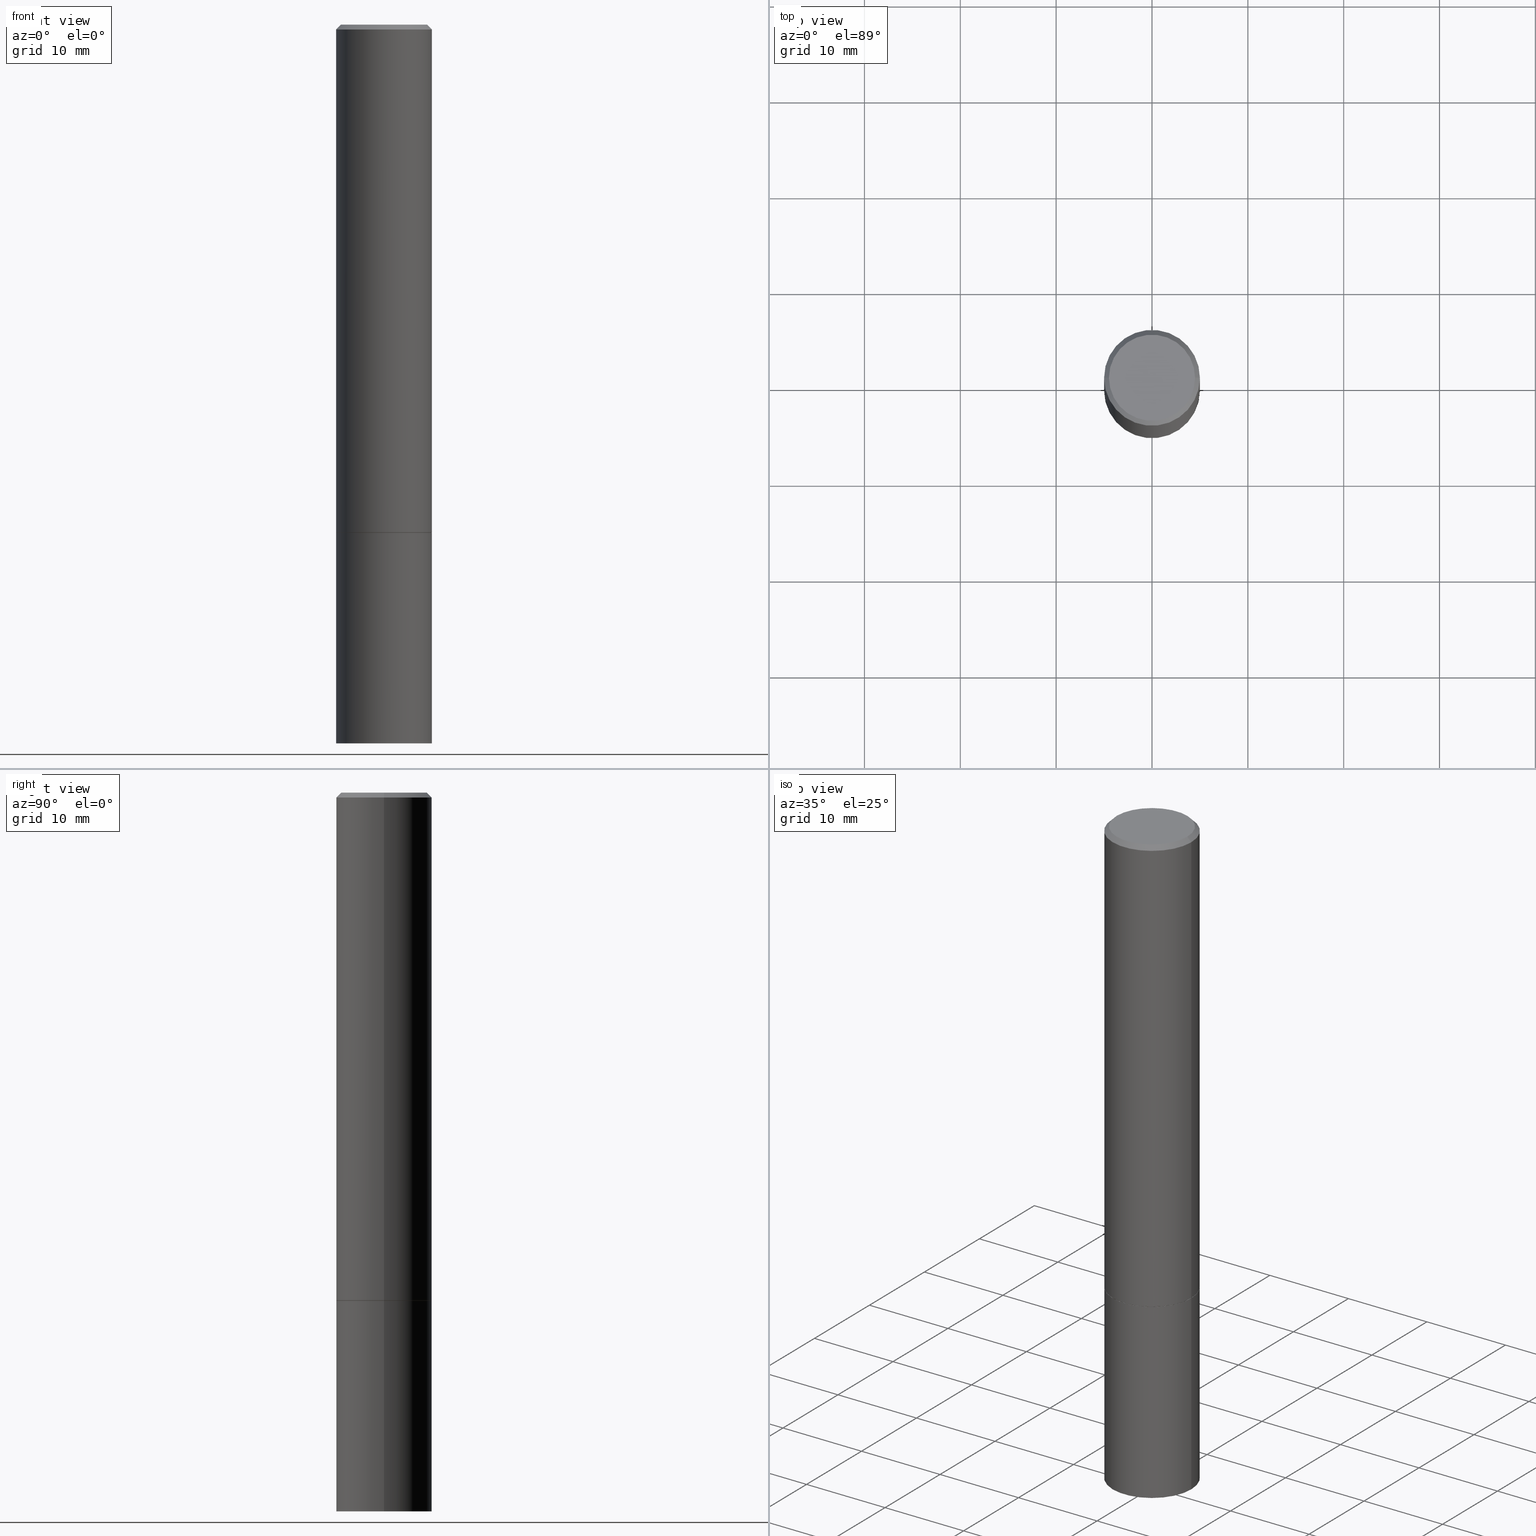
[diagram: canonical four-view strip — front | top / right | iso, engineering-drawing reading convention]
A machine part, canonical four-view strip (front | top / right | iso — engineering-drawing reading convention). The complete STEP part file that produces these views, byte-faithful:
ISO-10303-21;
HEADER;
FILE_DESCRIPTION (( 'STEP AP203' ),
    '1' );
FILE_NAME ('48791.STEP',
    '2024-02-28T14:51:59',
    ( '' ),
    ( '' ),
    'SwSTEP 2.0',
    'SolidWorks 2023',
    '' );
FILE_SCHEMA (( 'CONFIG_CONTROL_DESIGN' ));
ENDSEC;

DATA;
#1 = ADVANCED_FACE ( 'NONE', ( #358 ), #300, .T. ) ;
#2 = DIRECTION ( 'NONE',  ( -2.445468806185136597E-29, 3.491481338843145583E-15, 1.000000000000000000 ) ) ;
#3 = CIRCLE ( 'NONE', #124, 0.1968500000000000250 ) ;
#4 = ORIENTED_EDGE ( 'NONE', *, *, #112, .F. ) ;
#5 = CARTESIAN_POINT ( 'NONE',  ( 5.100514289060338336E-29, -7.282182628425147921E-15, -2.085699999999999665 ) ) ;
#6 = EDGE_LOOP ( 'NONE', ( #271, #183, #158, #121 ) ) ;
#7 = DIRECTION ( 'NONE',  ( 1.000000000000000000, -6.982962677686267499E-15, 0.000000000000000000 ) ) ;
#8 = ORIENTED_EDGE ( 'NONE', *, *, #123, .T. ) ;
#9 = APPROVAL ( #84, 'UNSPECIFIED' ) ;
#10 = DIRECTION ( 'NONE',  ( 2.445468806185136597E-29, -3.491481338843145583E-15, -1.000000000000000000 ) ) ;
#11 = ORIENTED_EDGE ( 'NONE', *, *, #332, .F. ) ;
#12 = DIRECTION ( 'NONE',  ( 1.000000000000000000, 0.000000000000000000, 0.000000000000000000 ) ) ;
#13 = ORIENTED_EDGE ( 'NONE', *, *, #112, .T. ) ;
#14 = CC_DESIGN_PERSON_AND_ORGANIZATION_ASSIGNMENT ( #331, #177, ( #280 ) ) ;
#15 = CARTESIAN_POINT ( 'NONE',  ( 5.102959757866523939E-29, -7.285674109763990928E-15, -2.086699999999999999 ) ) ;
#16 = EDGE_CURVE ( 'NONE', #74, #63, #141, .T. ) ;
#17 = DIRECTION ( 'NONE',  ( -2.445468806185136597E-29, 3.491481338843145583E-15, 1.000000000000000000 ) ) ;
#18 = CARTESIAN_POINT ( 'NONE',  ( 0.1958499999999999963, -8.653287350188846522E-15, -2.086699999999999999 ) ) ;
#19 = DIRECTION ( 'NONE',  ( 1.000000000000000000, -6.982962677686267499E-15, 0.000000000000000000 ) ) ;
#20 = FACE_OUTER_BOUND ( 'NONE', #6, .T. ) ;
#21 = PERSON_AND_ORGANIZATION ( #135, #83 ) ;
#22 = AXIS2_PLACEMENT_3D ( 'NONE', #319, #10, #106 ) ;
#23 = COORDINATED_UNIVERSAL_TIME_OFFSET ( 5, 0, .BEHIND. ) ;
#24 = PERSON_AND_ORGANIZATION ( #135, #83 ) ;
#25 = DIRECTION ( 'NONE',  ( 2.438088387897960049E-29, -3.491481338843145188E-15, -1.000000000000000000 ) ) ;
#26 = PERSON_AND_ORGANIZATION_ROLE ( 'design_supplier' ) ;
#27 = APPROVAL ( #189, 'UNSPECIFIED' ) ;
#28 = CIRCLE ( 'NONE', #277, 0.1968499999999997752 ) ;
#29 = DIRECTION ( 'NONE',  ( -2.445468806185136877E-29, 3.491481338843145188E-15, 1.000000000000000000 ) ) ;
#30 = CC_DESIGN_APPROVAL ( #27, ( #280 ) ) ;
#31 = CALENDAR_DATE ( 2024, 28, 2 ) ;
#32 = ADVANCED_FACE ( 'NONE', ( #198 ), #107, .T. ) ;
#33 = CARTESIAN_POINT ( 'NONE',  ( 1.374596203102613789E-15, 0.1968499999999896999, -2.952800000000000313 ) ) ;
#34 = ADVANCED_FACE ( 'NONE', ( #51 ), #155, .T. ) ;
#35 = VECTOR ( 'NONE', #89, 39.37007874015748143 ) ;
#36 = DIRECTION ( 'NONE',  ( 2.438088387897960049E-29, -3.491481338843145188E-15, -1.000000000000000000 ) ) ;
#37 = VERTEX_POINT ( 'NONE', #170 ) ;
#38 = DIRECTION ( 'NONE',  ( -2.445468806185136597E-29, 3.491481338843145583E-15, 1.000000000000000000 ) ) ;
#39 = ORIENTED_EDGE ( 'NONE', *, *, #341, .F. ) ;
#40 = VECTOR ( 'NONE', #48, 39.37007874015748143 ) ;
#41 = CIRCLE ( 'NONE', #364, 0.1958499999999999963 ) ;
#42 = CARTESIAN_POINT ( 'NONE',  ( 0.1958499999999999963, -8.653287350188846522E-15, -2.086699999999999999 ) ) ;
#43 = CARTESIAN_POINT ( 'NONE',  ( -0.1968499999999997752, 1.304766576325677127E-15, -0.02000000000000001776 ) ) ;
#44 = CARTESIAN_POINT ( 'NONE',  ( 5.102959757866523939E-29, -7.285674109763990928E-15, -2.086699999999999999 ) ) ;
#45 = CARTESIAN_POINT ( 'NONE',  ( 5.100514289060338336E-29, -7.282182628425147921E-15, -2.085699999999999665 ) ) ;
#46 = VECTOR ( 'NONE', #321, 39.37007874015748854 ) ;
#47 = DIRECTION ( 'NONE',  ( 1.000000000000000000, -6.982962677686268288E-15, 0.000000000000000000 ) ) ;
#48 = DIRECTION ( 'NONE',  ( -2.445468806185136877E-29, 3.491481338843145188E-15, 1.000000000000000000 ) ) ;
#49 = ORIENTED_EDGE ( 'NONE', *, *, #315, .F. ) ;
#50 = SECURITY_CLASSIFICATION_LEVEL ( 'unclassified' ) ;
#51 = FACE_OUTER_BOUND ( 'NONE', #318, .T. ) ;
#52 = CYLINDRICAL_SURFACE ( 'NONE', #222, 0.1968499999999999139 ) ;
#53 = CC_DESIGN_PERSON_AND_ORGANIZATION_ASSIGNMENT ( #359, #357, ( #142 ) ) ;
#54 = FACE_OUTER_BOUND ( 'NONE', #242, .T. ) ;
#55 = EDGE_CURVE ( 'NONE', #164, #37, #303, .T. ) ;
#56 = CIRCLE ( 'NONE', #180, 0.1968500000000000250 ) ;
#57 = CARTESIAN_POINT ( 'NONE',  ( 7.220980290903470182E-29, -1.030964609733603853E-14, -2.952799999999999869 ) ) ;
#58 = VECTOR ( 'NONE', #160, 39.37007874015748143 ) ;
#59 = CARTESIAN_POINT ( 'NONE',  ( 0.1768499999999997851, -1.316798864272040563E-15, 4.268512490109333727E-18 ) ) ;
#60 = ORIENTED_EDGE ( 'NONE', *, *, #295, .F. ) ;
#61 = CC_DESIGN_PERSON_AND_ORGANIZATION_ASSIGNMENT ( #365, #26, ( #114 ) ) ;
#62 = DIRECTION ( 'NONE',  ( -2.445468806185136597E-29, 3.491481338843145583E-15, 1.000000000000000000 ) ) ;
#63 = VERTEX_POINT ( 'NONE', #134 ) ;
#64 = ADVANCED_FACE ( 'NONE', ( #20 ), #276, .T. ) ;
#65 =( NAMED_UNIT ( * ) PLANE_ANGLE_UNIT ( ) SI_UNIT ( $, .RADIAN. ) );
#66 = AXIS2_PLACEMENT_3D ( 'NONE', #132, #254, #362 ) ;
#67 = LOCAL_TIME ( 9, 51, 59.00000000000000000, #224 ) ;
#68 = CARTESIAN_POINT ( 'NONE',  ( -0.1958499999999999963, -5.888777707429612535E-15, -2.086699999999999999 ) ) ;
#69 = VERTEX_POINT ( 'NONE', #18 ) ;
#70 = DATE_AND_TIME ( #325, #92 ) ;
#71 = EDGE_CURVE ( 'NONE', #95, #91, #301, .T. ) ;
#72 = ORIENTED_EDGE ( 'NONE', *, *, #55, .T. ) ;
#73 =( NAMED_UNIT ( * ) SI_UNIT ( $, .STERADIAN. ) SOLID_ANGLE_UNIT ( ) );
#74 = VERTEX_POINT ( 'NONE', #252 ) ;
#75 = CIRCLE ( 'NONE', #266, 0.1958499999999999963 ) ;
#76 = LOCAL_TIME ( 9, 51, 59.00000000000000000, #172 ) ;
#77 = DIRECTION ( 'NONE',  ( -2.445468806185136597E-29, 3.491481338843145583E-15, 1.000000000000000000 ) ) ;
#78 = PERSON_AND_ORGANIZATION ( #135, #83 ) ;
#79 = DIMENSIONAL_EXPONENTS ( 1.000000000000000000, 0.000000000000000000, 0.000000000000000000, 0.000000000000000000, 0.000000000000000000, 0.000000000000000000, 0.000000000000000000 ) ;
#80 = ORIENTED_EDGE ( 'NONE', *, *, #218, .F. ) ;
#81 = UNCERTAINTY_MEASURE_WITH_UNIT (LENGTH_MEASURE( 1.000000000000000082E-05 ), #128, 'distance_accuracy_value', 'NONE');
#82 = APPROVAL_STATUS ( 'not_yet_approved' ) ;
#83 = ORGANIZATION ( 'UNSPECIFIED', 'UNSPECIFIED', '' ) ;
#84 = APPROVAL_STATUS ( 'not_yet_approved' ) ;
#85 = LINE ( 'NONE', #203, #35 ) ;
#86 = DATE_AND_TIME ( #330, #238 ) ;
#87 = CARTESIAN_POINT ( 'NONE',  ( 0.1968500000000000250, -1.168424230043858014E-14, -2.952799999999999869 ) ) ;
#88 = CIRCLE ( 'NONE', #226, 0.1968500000000000250 ) ;
#89 = DIRECTION ( 'NONE',  ( -2.445468806185136877E-29, 3.491481338843145188E-15, 1.000000000000000000 ) ) ;
#90 = VECTOR ( 'NONE', #247, 39.37007874015748854 ) ;
#91 = VERTEX_POINT ( 'NONE', #302 ) ;
#92 = LOCAL_TIME ( 9, 51, 59.00000000000000000, #351 ) ;
#93 = DIRECTION ( 'NONE',  ( -1.000000000000000000, 6.982962677686265922E-15, -4.876176775795935793E-29 ) ) ;
#94 = ADVANCED_FACE ( 'NONE', ( #105 ), #361, .T. ) ;
#95 = VERTEX_POINT ( 'NONE', #231 ) ;
#96 = DIRECTION ( 'NONE',  ( -1.000000000000000000, 6.982962677686265922E-15, -4.876176775795935793E-29 ) ) ;
#97 = ORIENTED_EDGE ( 'NONE', *, *, #343, .T. ) ;
#98 = EDGE_LOOP ( 'NONE', ( #162, #217 ) ) ;
#99 = AXIS2_PLACEMENT_3D ( 'NONE', #44, #77, #195 ) ;
#100 = ADVANCED_FACE ( 'NONE', ( #338 ), #117, .F. ) ;
#101 = CARTESIAN_POINT ( 'NONE',  ( 0.000000000000000000, 0.000000000000000000, 0.000000000000000000 ) ) ;
#102 = CC_DESIGN_PERSON_AND_ORGANIZATION_ASSIGNMENT ( #335, #116, ( #114 ) ) ;
#103 = ORIENTED_EDGE ( 'NONE', *, *, #306, .F. ) ;
#104 = DIRECTION ( 'NONE',  ( -0.7071067811865469066, 2.468850131082251144E-15, -0.7071067811865479058 ) ) ;
#105 = FACE_OUTER_BOUND ( 'NONE', #143, .T. ) ;
#106 = DIRECTION ( 'NONE',  ( -1.000000000000000000, 6.982962677686266711E-15, 0.000000000000000000 ) ) ;
#107 = CYLINDRICAL_SURFACE ( 'NONE', #66, 0.1968499999999999139 ) ;
#108 = MANIFOLD_SOLID_BREP ( 'Body-Move/Copy2[2]', #154 ) ;
#109 = AXIS2_PLACEMENT_3D ( 'NONE', #171, #138, #168 ) ;
#110 = PERSON_AND_ORGANIZATION_ROLE ( 'classification_officer' ) ;
#111 = MANIFOLD_SOLID_BREP ( 'Body-Move/Copy2[1]', #286 ) ;
#112 = EDGE_CURVE ( 'NONE', #164, #326, #360, .T. ) ;
#113 = CIRCLE ( 'NONE', #178, 0.1968500000000000250 ) ;
#114 = PRODUCT_DEFINITION_FORMATION_WITH_SPECIFIED_SOURCE ( 'ANY', '', #142, .NOT_KNOWN. ) ;
#115 = DIRECTION ( 'NONE',  ( 1.000000000000000000, -6.982962677686267499E-15, 0.000000000000000000 ) ) ;
#116 = PERSON_AND_ORGANIZATION_ROLE ( 'creator' ) ;
#117 = PLANE ( 'NONE',  #305 ) ;
#118 = CARTESIAN_POINT ( 'NONE',  ( -1.043851414335219820E-46, 1.490343170380447200E-32, 4.268512490100411279E-18 ) ) ;
#119 = PRODUCT_DEFINITION_SHAPE ( 'NONE', 'NONE',  #280 ) ;
#120 = VECTOR ( 'NONE', #220, 39.37007874015748854 ) ;
#121 = ORIENTED_EDGE ( 'NONE', *, *, #196, .F. ) ;
#122 = DIRECTION ( 'NONE',  ( 2.438088387897960049E-29, -3.491481338843145188E-15, -1.000000000000000000 ) ) ;
#123 = EDGE_CURVE ( 'NONE', #37, #63, #28, .T. ) ;
#124 = AXIS2_PLACEMENT_3D ( 'NONE', #184, #260, #7 ) ;
#125 = VERTEX_POINT ( 'NONE', #234 ) ;
#126 = CARTESIAN_POINT ( 'NONE',  ( -1.043851414335219820E-46, 1.490343170380447200E-32, 4.268512490100411279E-18 ) ) ;
#127 = VERTEX_POINT ( 'NONE', #87 ) ;
#128 =( CONVERSION_BASED_UNIT ( 'INCH', #268 ) LENGTH_UNIT ( ) NAMED_UNIT ( #79 ) );
#129 = ORIENTED_EDGE ( 'NONE', *, *, #218, .T. ) ;
#130 = AXIS2_PLACEMENT_3D ( 'NONE', #126, #179, #281 ) ;
#131 = MECHANICAL_CONTEXT ( 'NONE', #193, 'mechanical' ) ;
#132 = CARTESIAN_POINT ( 'NONE',  ( 0.000000000000000000, 0.000000000000000000, 0.000000000000000000 ) ) ;
#133 = CARTESIAN_POINT ( 'NONE',  ( -0.1958499999999999963, -5.894076161777834937E-15, -2.086699999999999999 ) ) ;
#134 = CARTESIAN_POINT ( 'NONE',  ( -0.1968499999999997752, 1.304766576325677127E-15, -0.02000000000000001776 ) ) ;
#135 = PERSON ( 'UNSPECIFIED', 'UNSPECIFIED', 'UNSPECIFIED', ('UNSPECIFIED'), ('UNSPECIFIED'), ('UNSPECIFIED') ) ;
#136 = CARTESIAN_POINT ( 'NONE',  ( 5.102959757866523939E-29, -7.285674109763990928E-15, -2.086699999999999999 ) ) ;
#137 = EDGE_CURVE ( 'NONE', #125, #37, #228, .T. ) ;
#138 = DIRECTION ( 'NONE',  ( -2.445468806185136597E-29, 3.491481338843145583E-15, 1.000000000000000000 ) ) ;
#139 = DATE_AND_TIME ( #31, #149 ) ;
#140 = CC_DESIGN_APPROVAL ( #285, ( #114 ) ) ;
#141 = LINE ( 'NONE', #201, #40 ) ;
#142 = PRODUCT ( '48791', '48791', '', ( #131 ) ) ;
#143 = EDGE_LOOP ( 'NONE', ( #328, #347, #211, #320 ) ) ;
#144 = EDGE_CURVE ( 'NONE', #74, #125, #88, .T. ) ;
#145 = COORDINATED_UNIVERSAL_TIME_OFFSET ( 5, 0, .BEHIND. ) ;
#146 = DIRECTION ( 'NONE',  ( -2.445468806185136597E-29, 3.491481338843145583E-15, 1.000000000000000000 ) ) ;
#147 = AXIS2_PLACEMENT_3D ( 'NONE', #225, #221, #200 ) ;
#148 = AXIS2_PLACEMENT_3D ( 'NONE', #236, #36, #93 ) ;
#149 = LOCAL_TIME ( 9, 51, 59.00000000000000000, #23 ) ;
#150 = PLANE ( 'NONE',  #345 ) ;
#151 = FACE_OUTER_BOUND ( 'NONE', #349, .T. ) ;
#152 = ADVANCED_FACE ( 'NONE', ( #264 ), #237, .T. ) ;
#153 = ADVANCED_BREP_SHAPE_REPRESENTATION ( '48791', ( #111, #108, #245 ), #352 ) ;
#154 = CLOSED_SHELL ( 'NONE', ( #1, #32, #152, #289, #181, #34, #329, #232 ) ) ;
#155 = CONICAL_SURFACE ( 'NONE', #99, 0.1958499999999999963, 0.7853981633974141952 ) ;
#156 = APPROVAL_PERSON_ORGANIZATION ( #24, #9, #253 ) ;
#157 = PRODUCT_RELATED_PRODUCT_CATEGORY ( 'detail', '', ( #142 ) ) ;
#158 = ORIENTED_EDGE ( 'NONE', *, *, #265, .T. ) ;
#159 = ADVANCED_FACE ( 'NONE', ( #151 ), #150, .T. ) ;
#160 = DIRECTION ( 'NONE',  ( -2.445468806185136877E-29, 3.491481338843145188E-15, 1.000000000000000000 ) ) ;
#161 = CARTESIAN_POINT ( 'NONE',  ( 0.1968499999999999139, -1.374596203102541017E-15, 9.598753983154295253E-30 ) ) ;
#162 = ORIENTED_EDGE ( 'NONE', *, *, #71, .T. ) ;
#163 = DIRECTION ( 'NONE',  ( 1.000000000000000000, -6.982962677686266711E-15, 0.000000000000000000 ) ) ;
#164 = VERTEX_POINT ( 'NONE', #59 ) ;
#165 = EDGE_LOOP ( 'NONE', ( #288, #188, #103, #39 ) ) ;
#166 = AXIS2_PLACEMENT_3D ( 'NONE', #45, #191, #19 ) ;
#167 = FACE_OUTER_BOUND ( 'NONE', #294, .T. ) ;
#168 = DIRECTION ( 'NONE',  ( 1.000000000000000000, -6.982962677686265922E-15, 4.876176775795935793E-29 ) ) ;
#169 = APPLICATION_PROTOCOL_DEFINITION ( 'international standard', 'config_control_design', 1994, #193 ) ;
#170 = CARTESIAN_POINT ( 'NONE',  ( 0.1968499999999997752, -1.420318657638187347E-15, -0.02000000000000001776 ) ) ;
#171 = CARTESIAN_POINT ( 'NONE',  ( 0.000000000000000000, 0.000000000000000000, 0.000000000000000000 ) ) ;
#172 = COORDINATED_UNIVERSAL_TIME_OFFSET ( 5, 0, .BEHIND. ) ;
#173 = DIRECTION ( 'NONE',  ( -2.445468806185136597E-29, 3.491481338843145583E-15, 1.000000000000000000 ) ) ;
#174 = CC_DESIGN_DATE_AND_TIME_ASSIGNMENT ( #204, #278, ( #323 ) ) ;
#175 = DIRECTION ( 'NONE',  ( 2.445468806185136597E-29, -3.491481338843145583E-15, -1.000000000000000000 ) ) ;
#176 = DIRECTION ( 'NONE',  ( 1.000000000000000000, -6.982962677686265922E-15, 4.876176775795935793E-29 ) ) ;
#177 = PERSON_AND_ORGANIZATION_ROLE ( 'creator' ) ;
#178 = AXIS2_PLACEMENT_3D ( 'NONE', #366, #342, #336 ) ;
#179 = DIRECTION ( 'NONE',  ( -2.445468806185136597E-29, 3.491481338843145583E-15, 1.000000000000000000 ) ) ;
#180 = AXIS2_PLACEMENT_3D ( 'NONE', #57, #2, #284 ) ;
#181 = ADVANCED_FACE ( 'NONE', ( #54 ), #52, .T. ) ;
#182 = CARTESIAN_POINT ( 'NONE',  ( 0.1968500000000000250, -1.374596203102541608E-15, 9.598753983154300858E-30 ) ) ;
#183 = ORIENTED_EDGE ( 'NONE', *, *, #206, .T. ) ;
#184 = CARTESIAN_POINT ( 'NONE',  ( 5.102959757866523939E-29, -7.285674109763990928E-15, -2.086699999999999999 ) ) ;
#185 = ORIENTED_EDGE ( 'NONE', *, *, #123, .F. ) ;
#186 = CARTESIAN_POINT ( 'NONE',  ( -0.1768499999999997851, 1.269851762937246069E-15, 4.268512490091652920E-18 ) ) ;
#187 = AXIS2_PLACEMENT_3D ( 'NONE', #279, #249, #176 ) ;
#188 = ORIENTED_EDGE ( 'NONE', *, *, #315, .T. ) ;
#189 = APPROVAL_STATUS ( 'not_yet_approved' ) ;
#190 = ORIENTED_EDGE ( 'NONE', *, *, #272, .F. ) ;
#191 = DIRECTION ( 'NONE',  ( -2.445468806185136597E-29, 3.491481338843145583E-15, 1.000000000000000000 ) ) ;
#192 = ORIENTED_EDGE ( 'NONE', *, *, #295, .T. ) ;
#193 = APPLICATION_CONTEXT ( 'configuration controlled 3d designs of mechanical parts and assemblies' ) ;
#194 = DIRECTION ( 'NONE',  ( 0.000000000000000000, 0.000000000000000000, 1.000000000000000000 ) ) ;
#195 = DIRECTION ( 'NONE',  ( 1.000000000000000000, -6.982962677686268288E-15, 0.000000000000000000 ) ) ;
#196 = EDGE_CURVE ( 'NONE', #91, #95, #3, .T. ) ;
#197 = LINE ( 'NONE', #133, #120 ) ;
#198 = FACE_OUTER_BOUND ( 'NONE', #298, .T. ) ;
#199 = DATE_AND_TIME ( #308, #67 ) ;
#200 = DIRECTION ( 'NONE',  ( 1.000000000000000000, -6.982962677686268288E-15, 0.000000000000000000 ) ) ;
#201 = CARTESIAN_POINT ( 'NONE',  ( -0.1968499999999999139, 1.398703375343756604E-15, -9.682923725166778072E-30 ) ) ;
#202 = APPROVAL_DATE_TIME ( #139, #9 ) ;
#203 = CARTESIAN_POINT ( 'NONE',  ( -0.1968500000000000250, 1.398703375343757393E-15, -9.682923725166783677E-30 ) ) ;
#204 = DATE_AND_TIME ( #337, #76 ) ;
#205 = CARTESIAN_POINT ( 'NONE',  ( 4.890937612370276662E-31, -6.982962677686296539E-17, -0.02000000000000001776 ) ) ;
#206 = EDGE_CURVE ( 'NONE', #263, #127, #56, .T. ) ;
#207 = CONICAL_SURFACE ( 'NONE', #22, 0.1968499999999997752, 0.7853981633974476129 ) ;
#208 = APPLICATION_CONTEXT ( 'configuration controlled 3d designs of mechanical parts and assemblies' ) ;
#209 = PLANE ( 'NONE',  #148 ) ;
#210 = VECTOR ( 'NONE', #104, 39.37007874015748854 ) ;
#211 = ORIENTED_EDGE ( 'NONE', *, *, #71, .F. ) ;
#212 = DIRECTION ( 'NONE',  ( -2.445468806185136597E-29, 3.491481338843145583E-15, 1.000000000000000000 ) ) ;
#213 = EDGE_LOOP ( 'NONE', ( #235, #80, #316, #97 ) ) ;
#214 = APPLICATION_PROTOCOL_DEFINITION ( 'international standard', 'config_control_design', 1994, #208 ) ;
#215 = EDGE_LOOP ( 'NONE', ( #129, #13 ) ) ;
#216 = PERSON_AND_ORGANIZATION ( #135, #83 ) ;
#217 = ORIENTED_EDGE ( 'NONE', *, *, #196, .T. ) ;
#218 = EDGE_CURVE ( 'NONE', #326, #164, #256, .T. ) ;
#219 = EDGE_CURVE ( 'NONE', #127, #263, #113, .T. ) ;
#220 = DIRECTION ( 'NONE',  ( -0.7071067811865232589, 7.493145998870265808E-15, 0.7071067811865715536 ) ) ;
#221 = DIRECTION ( 'NONE',  ( -2.445468806185136597E-29, 3.491481338843145583E-15, 1.000000000000000000 ) ) ;
#222 = AXIS2_PLACEMENT_3D ( 'NONE', #259, #38, #255 ) ;
#223 = APPROVAL_DATE_TIME ( #70, #27 ) ;
#224 = COORDINATED_UNIVERSAL_TIME_OFFSET ( 5, 0, .BEHIND. ) ;
#225 = CARTESIAN_POINT ( 'NONE',  ( 5.102959757866523939E-29, -7.285674109763990928E-15, -2.086699999999999999 ) ) ;
#226 = AXIS2_PLACEMENT_3D ( 'NONE', #5, #146, #115 ) ;
#227 = APPROVAL_ROLE ( '' ) ;
#228 = LINE ( 'NONE', #161, #251 ) ;
#229 = DATE_TIME_ROLE ( 'creation_date' ) ;
#230 = EDGE_CURVE ( 'NONE', #263, #91, #85, .T. ) ;
#231 = CARTESIAN_POINT ( 'NONE',  ( 0.1968500000000000250, -8.660270312866532536E-15, -2.086699999999999999 ) ) ;
#232 = ADVANCED_FACE ( 'NONE', ( #317 ), #209, .F. ) ;
#233 = CC_DESIGN_PERSON_AND_ORGANIZATION_ASSIGNMENT ( #78, #110, ( #323 ) ) ;
#234 = CARTESIAN_POINT ( 'NONE',  ( 0.1968500000000000250, -8.656778831527691107E-15, -2.085699999999999665 ) ) ;
#235 = ORIENTED_EDGE ( 'NONE', *, *, #55, .F. ) ;
#236 = CARTESIAN_POINT ( 'NONE',  ( 1.234936949548814617E-15, 0.1768499999999997851, -6.153342185293593634E-16 ) ) ;
#237 = CONICAL_SURFACE ( 'NONE', #274, 0.1968499999999997752, 0.7853981633974476129 ) ;
#238 = LOCAL_TIME ( 9, 51, 59.00000000000000000, #145 ) ;
#239 = ORIENTED_EDGE ( 'NONE', *, *, #144, .T. ) ;
#240 = CC_DESIGN_DATE_AND_TIME_ASSIGNMENT ( #199, #229, ( #280 ) ) ;
#241 = DIRECTION ( 'NONE',  ( 1.000000000000000000, -6.982962677686268288E-15, 0.000000000000000000 ) ) ;
#242 = EDGE_LOOP ( 'NONE', ( #333, #239, #243, #344 ) ) ;
#243 = ORIENTED_EDGE ( 'NONE', *, *, #137, .T. ) ;
#244 = APPROVAL_ROLE ( '' ) ;
#245 = AXIS2_PLACEMENT_3D ( 'NONE', #101, #194, #12 ) ;
#246 = ORIENTED_EDGE ( 'NONE', *, *, #144, .F. ) ;
#247 = DIRECTION ( 'NONE',  ( 0.7071067811865469066, -7.319954787623252890E-15, -0.7071067811865479058 ) ) ;
#248 = CARTESIAN_POINT ( 'NONE',  ( 4.890937612370276662E-31, -6.982962677686296539E-17, -0.02000000000000001776 ) ) ;
#249 = DIRECTION ( 'NONE',  ( -2.445468806185136597E-29, 3.491481338843145583E-15, 1.000000000000000000 ) ) ;
#250 = DIRECTION ( 'NONE',  ( -2.445468806185136597E-29, 3.491481338843145583E-15, 1.000000000000000000 ) ) ;
#251 = VECTOR ( 'NONE', #29, 39.37007874015748143 ) ;
#252 = CARTESIAN_POINT ( 'NONE',  ( -0.1968500000000000250, -2.277302752257247033E-15, -2.085699999999999665 ) ) ;
#253 = APPROVAL_ROLE ( '' ) ;
#254 = DIRECTION ( 'NONE',  ( -2.445468806185136597E-29, 3.491481338843145583E-15, 1.000000000000000000 ) ) ;
#255 = DIRECTION ( 'NONE',  ( 1.000000000000000000, -6.982962677686266711E-15, 4.876176775795935793E-29 ) ) ;
#256 = CIRCLE ( 'NONE', #130, 0.1768499999999997851 ) ;
#257 = DESIGN_CONTEXT ( 'detailed design', #208, 'design' ) ;
#258 = CC_DESIGN_SECURITY_CLASSIFICATION ( #323, ( #114 ) ) ;
#259 = CARTESIAN_POINT ( 'NONE',  ( 0.000000000000000000, 0.000000000000000000, 0.000000000000000000 ) ) ;
#260 = DIRECTION ( 'NONE',  ( -2.445468806185136597E-29, 3.491481338843145583E-15, 1.000000000000000000 ) ) ;
#261 = AXIS2_PLACEMENT_3D ( 'NONE', #248, #250, #163 ) ;
#262 = DIRECTION ( 'NONE',  ( 1.000000000000000000, -6.982962677686266711E-15, 4.875932113059884174E-29 ) ) ;
#263 = VERTEX_POINT ( 'NONE', #314 ) ;
#264 = FACE_OUTER_BOUND ( 'NONE', #267, .T. ) ;
#265 = EDGE_CURVE ( 'NONE', #127, #95, #307, .T. ) ;
#266 = AXIS2_PLACEMENT_3D ( 'NONE', #287, #62, #241 ) ;
#267 = EDGE_LOOP ( 'NONE', ( #4, #72, #8, #11 ) ) ;
#268 = LENGTH_MEASURE_WITH_UNIT ( LENGTH_MEASURE( 0.02539999999999999897 ), #297 );
#269 = ORIENTED_EDGE ( 'NONE', *, *, #16, .T. ) ;
#270 = DIRECTION ( 'NONE',  ( 1.000000000000000000, -6.982962677686265922E-15, 4.876176775795935793E-29 ) ) ;
#271 = ORIENTED_EDGE ( 'NONE', *, *, #230, .F. ) ;
#272 = EDGE_CURVE ( 'NONE', #69, #350, #75, .T. ) ;
#273 = LINE ( 'NONE', #42, #46 ) ;
#274 = AXIS2_PLACEMENT_3D ( 'NONE', #346, #175, #290 ) ;
#275 = CARTESIAN_POINT ( 'NONE',  ( 0.1968499999999997752, -1.420318657638187347E-15, -0.02000000000000001776 ) ) ;
#276 = CYLINDRICAL_SURFACE ( 'NONE', #109, 0.1968500000000000250 ) ;
#277 = AXIS2_PLACEMENT_3D ( 'NONE', #205, #212, #309 ) ;
#278 = DATE_TIME_ROLE ( 'classification_date' ) ;
#279 = CARTESIAN_POINT ( 'NONE',  ( 0.000000000000000000, 0.000000000000000000, 0.000000000000000000 ) ) ;
#280 = PRODUCT_DEFINITION ( 'UNKNOWN', '', #114, #257 ) ;
#281 = DIRECTION ( 'NONE',  ( 1.000000000000000000, -6.982962677686266711E-15, 4.875932113059884174E-29 ) ) ;
#282 = APPROVAL_DATE_TIME ( #86, #285 ) ;
#283 = CARTESIAN_POINT ( 'NONE',  ( 1.374596203102592490E-15, 0.1968499999999927252, -2.086700000000000887 ) ) ;
#284 = DIRECTION ( 'NONE',  ( 1.000000000000000000, -6.982962677686267499E-15, 0.000000000000000000 ) ) ;
#285 = APPROVAL ( #82, 'UNSPECIFIED' ) ;
#286 = CLOSED_SHELL ( 'NONE', ( #94, #159, #100, #64 ) ) ;
#287 = CARTESIAN_POINT ( 'NONE',  ( 5.102959757866523939E-29, -7.285674109763990928E-15, -2.086699999999999999 ) ) ;
#288 = ORIENTED_EDGE ( 'NONE', *, *, #272, .T. ) ;
#289 = ADVANCED_FACE ( 'NONE', ( #348 ), #207, .T. ) ;
#290 = DIRECTION ( 'NONE',  ( -1.000000000000000000, 6.982962677686266711E-15, 0.000000000000000000 ) ) ;
#291 = ORIENTED_EDGE ( 'NONE', *, *, #306, .T. ) ;
#292 = DIRECTION ( 'NONE',  ( -2.438088387897960049E-29, 3.491481338843145188E-15, 1.000000000000000000 ) ) ;
#293 = CIRCLE ( 'NONE', #261, 0.1968499999999997752 ) ;
#294 = EDGE_LOOP ( 'NONE', ( #190, #60 ) ) ;
#295 = EDGE_CURVE ( 'NONE', #350, #69, #41, .T. ) ;
#296 = ORIENTED_EDGE ( 'NONE', *, *, #341, .T. ) ;
#297 =( LENGTH_UNIT ( ) NAMED_UNIT ( * ) SI_UNIT ( $, .METRE. ) );
#298 = EDGE_LOOP ( 'NONE', ( #291, #269, #185, #324 ) ) ;
#299 = CARTESIAN_POINT ( 'NONE',  ( 5.102959757866523939E-29, -7.285674109763990928E-15, -2.086699999999999999 ) ) ;
#300 = CONICAL_SURFACE ( 'NONE', #147, 0.1958499999999999963, 0.7853981633974141952 ) ;
#301 = CIRCLE ( 'NONE', #339, 0.1968500000000000250 ) ;
#302 = CARTESIAN_POINT ( 'NONE',  ( -0.1968500000000000250, -7.398956728206258518E-15, -2.086699999999999999 ) ) ;
#303 = LINE ( 'NONE', #275, #90 ) ;
#304 = ORIENTED_EDGE ( 'NONE', *, *, #219, .F. ) ;
#305 = AXIS2_PLACEMENT_3D ( 'NONE', #283, #122, #363 ) ;
#306 = EDGE_CURVE ( 'NONE', #125, #74, #313, .T. ) ;
#307 = LINE ( 'NONE', #182, #58 ) ;
#308 = CALENDAR_DATE ( 2024, 28, 2 ) ;
#309 = DIRECTION ( 'NONE',  ( 1.000000000000000000, -6.982962677686266711E-15, 0.000000000000000000 ) ) ;
#310 = SHAPE_DEFINITION_REPRESENTATION ( #119, #153 ) ;
#311 = DIRECTION ( 'NONE',  ( -2.445468806185136597E-29, 3.491481338843145583E-15, 1.000000000000000000 ) ) ;
#312 = AXIS2_PLACEMENT_3D ( 'NONE', #118, #311, #262 ) ;
#313 = CIRCLE ( 'NONE', #166, 0.1968500000000000250 ) ;
#314 = CARTESIAN_POINT ( 'NONE',  ( -0.1968500000000000250, -7.398956728206258518E-15, -2.952799999999999869 ) ) ;
#315 = EDGE_CURVE ( 'NONE', #350, #74, #197, .T. ) ;
#316 = ORIENTED_EDGE ( 'NONE', *, *, #332, .T. ) ;
#317 = FACE_OUTER_BOUND ( 'NONE', #215, .T. ) ;
#318 = EDGE_LOOP ( 'NONE', ( #49, #192, #296, #246 ) ) ;
#319 = CARTESIAN_POINT ( 'NONE',  ( 4.890937612370276662E-31, -6.982962677686296539E-17, -0.02000000000000001776 ) ) ;
#320 = ORIENTED_EDGE ( 'NONE', *, *, #265, .F. ) ;
#321 = DIRECTION ( 'NONE',  ( 0.7071067811865232589, -2.468850131082003836E-15, 0.7071067811865715536 ) ) ;
#322 = AXIS2_PLACEMENT_3D ( 'NONE', #136, #292, #270 ) ;
#323 = SECURITY_CLASSIFICATION ( '', '', #50 ) ;
#324 = ORIENTED_EDGE ( 'NONE', *, *, #137, .F. ) ;
#325 = CALENDAR_DATE ( 2024, 28, 2 ) ;
#326 = VERTEX_POINT ( 'NONE', #186 ) ;
#327 = LINE ( 'NONE', #43, #210 ) ;
#328 = ORIENTED_EDGE ( 'NONE', *, *, #219, .T. ) ;
#329 = ADVANCED_FACE ( 'NONE', ( #167 ), #355, .F. ) ;
#330 = CALENDAR_DATE ( 2024, 28, 2 ) ;
#331 = PERSON_AND_ORGANIZATION ( #135, #83 ) ;
#332 = EDGE_CURVE ( 'NONE', #326, #63, #327, .T. ) ;
#333 = ORIENTED_EDGE ( 'NONE', *, *, #16, .F. ) ;
#334 = APPROVAL_PERSON_ORGANIZATION ( #21, #285, #227 ) ;
#335 = PERSON_AND_ORGANIZATION ( #135, #83 ) ;
#336 = DIRECTION ( 'NONE',  ( 1.000000000000000000, -6.982962677686267499E-15, 0.000000000000000000 ) ) ;
#337 = CALENDAR_DATE ( 2024, 28, 2 ) ;
#338 = FACE_OUTER_BOUND ( 'NONE', #98, .T. ) ;
#339 = AXIS2_PLACEMENT_3D ( 'NONE', #15, #173, #356 ) ;
#340 = CC_DESIGN_APPROVAL ( #9, ( #323 ) ) ;
#341 = EDGE_CURVE ( 'NONE', #69, #125, #273, .T. ) ;
#342 = DIRECTION ( 'NONE',  ( -2.445468806185136597E-29, 3.491481338843145583E-15, 1.000000000000000000 ) ) ;
#343 = EDGE_CURVE ( 'NONE', #63, #37, #293, .T. ) ;
#344 = ORIENTED_EDGE ( 'NONE', *, *, #343, .F. ) ;
#345 = AXIS2_PLACEMENT_3D ( 'NONE', #33, #25, #96 ) ;
#346 = CARTESIAN_POINT ( 'NONE',  ( 4.890937612370276662E-31, -6.982962677686296539E-17, -0.02000000000000001776 ) ) ;
#347 = ORIENTED_EDGE ( 'NONE', *, *, #230, .T. ) ;
#348 = FACE_OUTER_BOUND ( 'NONE', #213, .T. ) ;
#349 = EDGE_LOOP ( 'NONE', ( #304, #354 ) ) ;
#350 = VERTEX_POINT ( 'NONE', #68 ) ;
#351 = COORDINATED_UNIVERSAL_TIME_OFFSET ( 5, 0, .BEHIND. ) ;
#352 =( GEOMETRIC_REPRESENTATION_CONTEXT ( 3 ) GLOBAL_UNCERTAINTY_ASSIGNED_CONTEXT ( ( #81 ) ) GLOBAL_UNIT_ASSIGNED_CONTEXT ( ( #128, #65, #73 ) ) REPRESENTATION_CONTEXT ( 'NONE', 'WORKASPACE' ) );
#353 = APPROVAL_PERSON_ORGANIZATION ( #216, #27, #244 ) ;
#354 = ORIENTED_EDGE ( 'NONE', *, *, #206, .F. ) ;
#355 = PLANE ( 'NONE',  #322 ) ;
#356 = DIRECTION ( 'NONE',  ( 1.000000000000000000, -6.982962677686267499E-15, 0.000000000000000000 ) ) ;
#357 = PERSON_AND_ORGANIZATION_ROLE ( 'design_owner' ) ;
#358 = FACE_OUTER_BOUND ( 'NONE', #165, .T. ) ;
#359 = PERSON_AND_ORGANIZATION ( #135, #83 ) ;
#360 = CIRCLE ( 'NONE', #312, 0.1768499999999997851 ) ;
#361 = CYLINDRICAL_SURFACE ( 'NONE', #187, 0.1968500000000000250 ) ;
#362 = DIRECTION ( 'NONE',  ( 1.000000000000000000, -6.982962677686266711E-15, 4.876176775795935793E-29 ) ) ;
#363 = DIRECTION ( 'NONE',  ( -1.000000000000000000, 6.982962677686265922E-15, -4.876176775795935793E-29 ) ) ;
#364 = AXIS2_PLACEMENT_3D ( 'NONE', #299, #17, #47 ) ;
#365 = PERSON_AND_ORGANIZATION ( #135, #83 ) ;
#366 = CARTESIAN_POINT ( 'NONE',  ( 7.220980290903470182E-29, -1.030964609733603853E-14, -2.952799999999999869 ) ) ;
ENDSEC;
END-ISO-10303-21;
